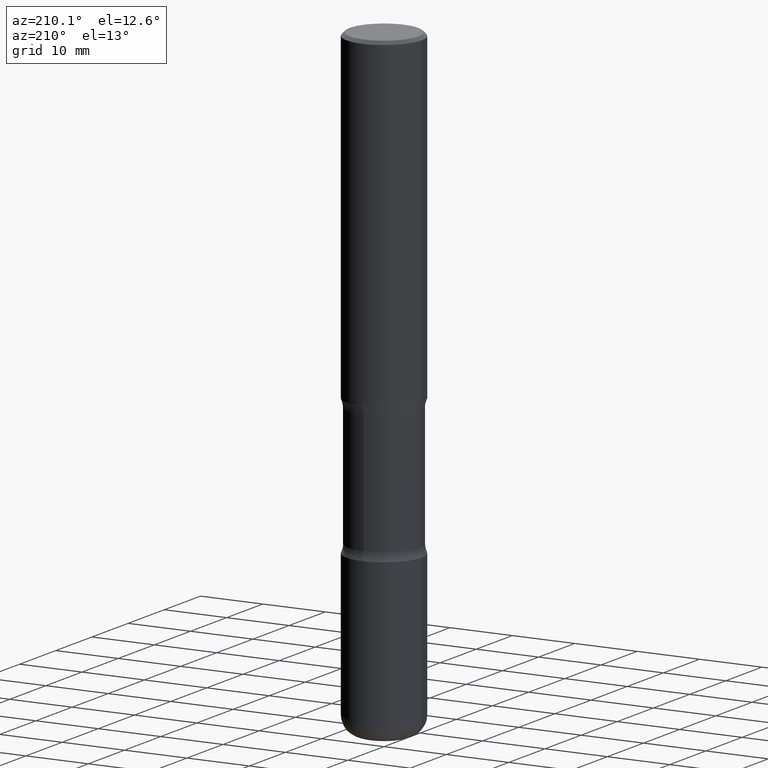
[diagram: clean part render]
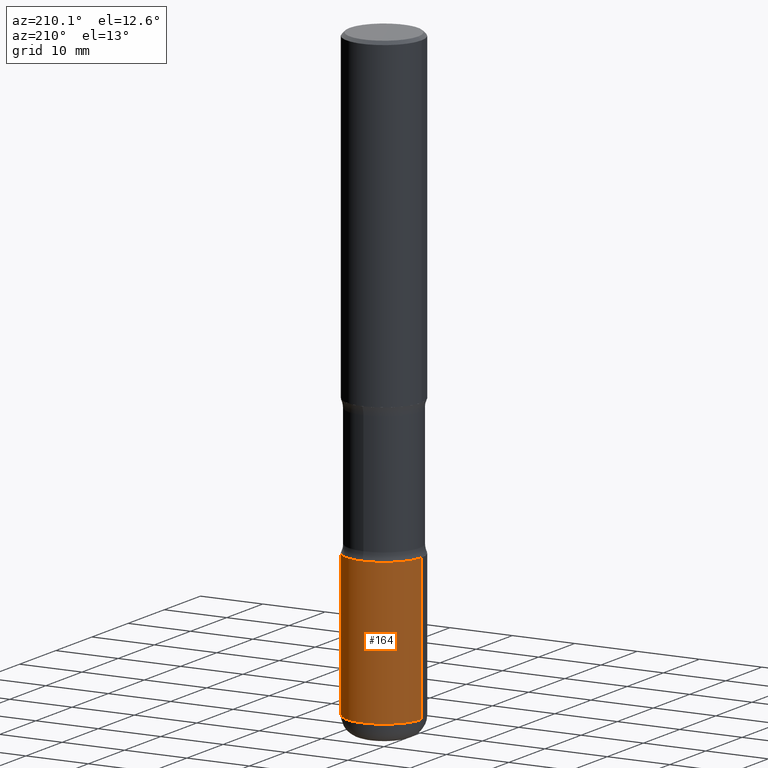
[diagram: same view with one face highlighted and labeled with its STEP entity id]
A machine part, auxiliary view. The second image highlights one B-rep face of the part: STEP entity #164.
In plain terms, the highlighted cylindrical surface (partial cylindrical patch) has radius 5.9995 mm, axis along (-0, 0, 1).
Its self-contained STEP definition (entity closure, byte-faithful):
#4 = DIRECTION ( 'NONE',  ( 1.000000000000000000, -6.982962677686266711E-15, 4.876176775795936353E-29 ) ) ;
#12 = EDGE_CURVE ( 'NONE', #464, #528, #516, .T. ) ;
#32 = VERTEX_POINT ( 'NONE', #269 ) ;
#46 = DIRECTION ( 'NONE',  ( -2.445468806185136877E-29, 3.491481338843145188E-15, 1.000000000000000000 ) ) ;
#55 = DIRECTION ( 'NONE',  ( -2.445468806185136597E-29, 3.491481338843145583E-15, 1.000000000000000000 ) ) ;
#62 = DIRECTION ( 'NONE',  ( 1.000000000000000000, -6.982962677686266711E-15, 0.000000000000000000 ) ) ;
#68 = EDGE_CURVE ( 'NONE', #464, #303, #129, .T. ) ;
#80 = AXIS2_PLACEMENT_3D ( 'NONE', #454, #495, #4 ) ;
#94 = DIRECTION ( 'NONE',  ( -2.445468806185136597E-29, 3.491481338843145583E-15, 1.000000000000000000 ) ) ;
#106 = CIRCLE ( 'NONE', #181, 0.2362000000000001321 ) ;
#118 = ORIENTED_EDGE ( 'NONE', *, *, #12, .T. ) ;
#129 = LINE ( 'NONE', #178, #393 ) ;
#164 = ADVANCED_FACE ( 'NONE', ( #543 ), #498, .T. ) ;
#176 = EDGE_LOOP ( 'NONE', ( #118, #267, #180, #400 ) ) ;
#178 = CARTESIAN_POINT ( 'NONE',  ( 0.2362000000000001598, -1.649375784469497314E-15, 1.151752954443000929E-29 ) ) ;
#180 = ORIENTED_EDGE ( 'NONE', *, *, #375, .F. ) ;
#181 = AXIS2_PLACEMENT_3D ( 'NONE', #268, #55, #225 ) ;
#199 = CARTESIAN_POINT ( 'NONE',  ( 0.2362000000000002153, -1.498299386937758423E-14, -3.818899999999998851 ) ) ;
#223 = EDGE_CURVE ( 'NONE', #528, #32, #254, .T. ) ;
#225 = DIRECTION ( 'NONE',  ( 1.000000000000000000, -6.982962677686269077E-15, 0.000000000000000000 ) ) ;
#254 = LINE ( 'NONE', #436, #501 ) ;
#267 = ORIENTED_EDGE ( 'NONE', *, *, #223, .T. ) ;
#268 = CARTESIAN_POINT ( 'NONE',  ( 7.124628819939777829E-29, -1.017208173258562247E-14, -2.913400000000000212 ) ) ;
#269 = CARTESIAN_POINT ( 'NONE',  ( -0.2362000000000001321, -1.007454796688149554E-14, -2.913400000000000212 ) ) ;
#303 = VERTEX_POINT ( 'NONE', #313 ) ;
#312 = CARTESIAN_POINT ( 'NONE',  ( 9.339000823940415305E-29, -1.333361808490808613E-14, -3.818899999999998851 ) ) ;
#313 = CARTESIAN_POINT ( 'NONE',  ( 0.2362000000000001321, -1.182145751705511899E-14, -2.913400000000000212 ) ) ;
#325 = AXIS2_PLACEMENT_3D ( 'NONE', #312, #94, #62 ) ;
#330 = CARTESIAN_POINT ( 'NONE',  ( -0.2362000000000002153, -1.165531614304272658E-14, -3.818899999999998851 ) ) ;
#352 = DIRECTION ( 'NONE',  ( -2.445468806185136877E-29, 3.491481338843145188E-15, 1.000000000000000000 ) ) ;
#375 = EDGE_CURVE ( 'NONE', #303, #32, #106, .T. ) ;
#393 = VECTOR ( 'NONE', #352, 39.37007874015748143 ) ;
#400 = ORIENTED_EDGE ( 'NONE', *, *, #68, .F. ) ;
#436 = CARTESIAN_POINT ( 'NONE',  ( -0.2362000000000001598, 1.678301941865357775E-15, -1.161852468318209598E-29 ) ) ;
#454 = CARTESIAN_POINT ( 'NONE',  ( 0.000000000000000000, 0.000000000000000000, 0.000000000000000000 ) ) ;
#464 = VERTEX_POINT ( 'NONE', #199 ) ;
#495 = DIRECTION ( 'NONE',  ( -2.445468806185136597E-29, 3.491481338843145583E-15, 1.000000000000000000 ) ) ;
#498 = CYLINDRICAL_SURFACE ( 'NONE', #80, 0.2362000000000001598 ) ;
#501 = VECTOR ( 'NONE', #46, 39.37007874015748143 ) ;
#516 = CIRCLE ( 'NONE', #325, 0.2362000000000002153 ) ;
#528 = VERTEX_POINT ( 'NONE', #330 ) ;
#543 = FACE_OUTER_BOUND ( 'NONE', #176, .T. ) ;